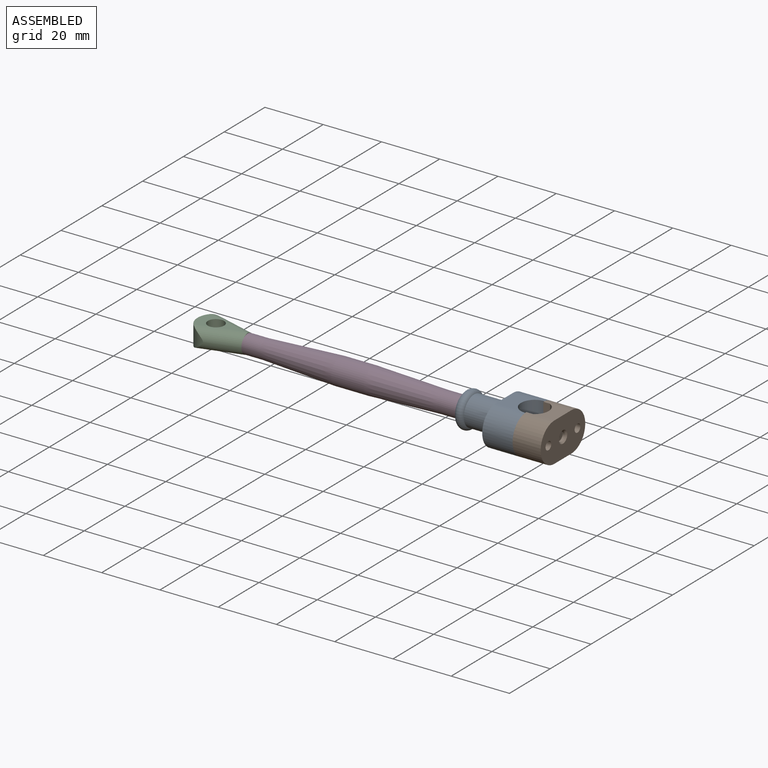
[diagram: assembled view]
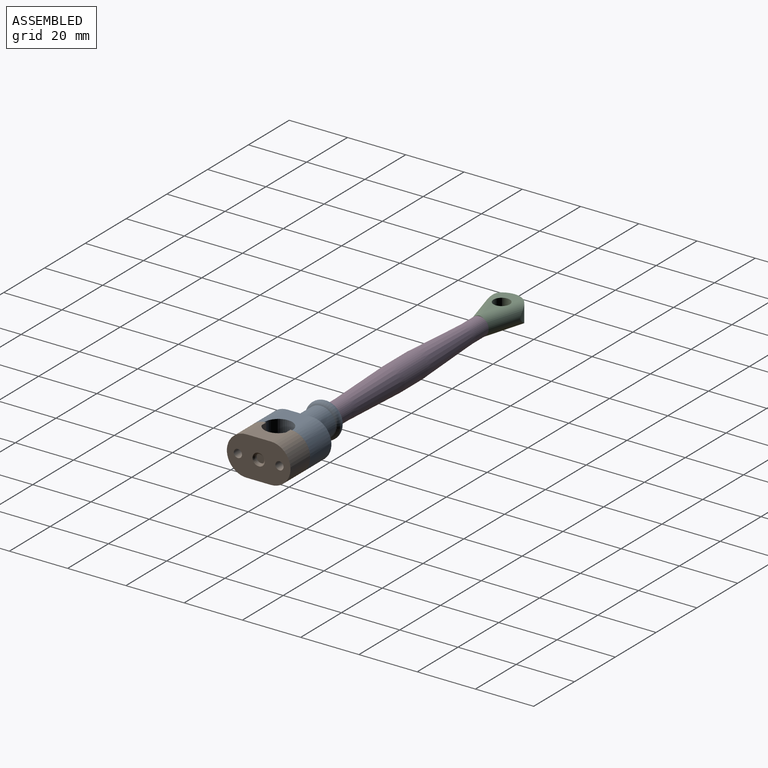
[diagram: assembled view, second angle]
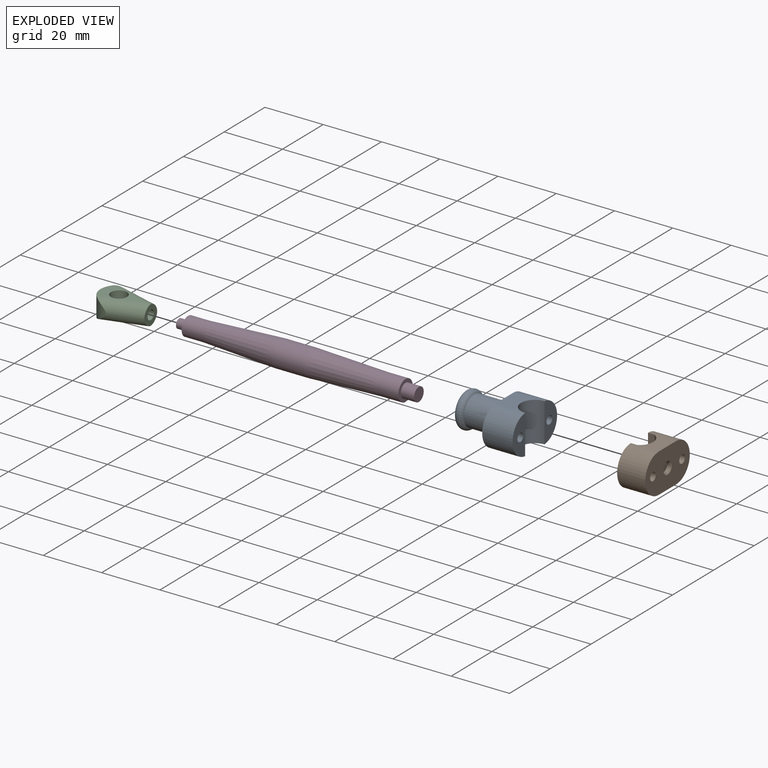
[diagram: exploded view]
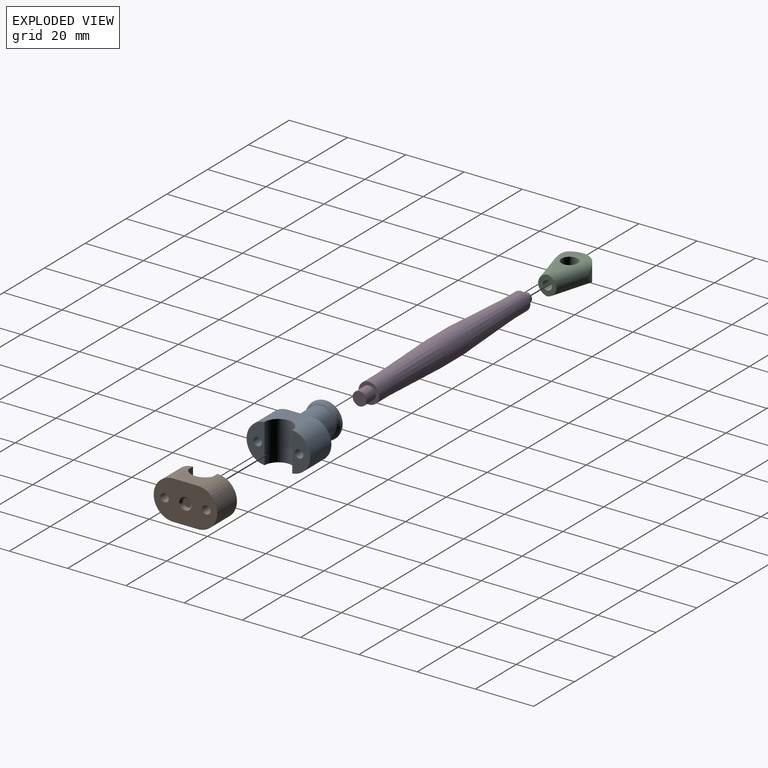
[diagram: exploded view, second angle]
ASSEMBLY  parts=4 mates=3
PART A: 20 faces, bbox 23.9x21.8x14.3 mm
  f0: plane 8.38x8.15mm, normal (0,0,1), area 53.4mm2, adj f4,f9,f18,f19
  f1: plane 8.38x8.15mm, normal (0,0,-1), area 53.4mm2, adj f4,f9,f18,f19
  f2: plane 13.41x6.16mm, normal (1,0,0), area 57.1mm2, adj f5,f9,f19
  f3: plane 13.41x6.16mm, normal (1,0,0), area 57.1mm2, adj f7,f9,f18
  f4: plane 21.84x13.46mm, normal (-1,0,0), area 118.2mm2, adj f0,f1,f17,f18,f19
  f5: cylinder r=1.42mm len=4.83mm, axis (1,0,0), area 43.1mm2, adj f2,f6
  f6: plane 2.85x2.84mm, normal (1,0,0), area 6.4mm2, adj f5
  f7: cylinder r=1.42mm len=4.83mm, axis (1,0,0), area 43.1mm2, adj f3,f8
  f8: plane 2.85x2.84mm, normal (1,0,0), area 6.4mm2, adj f7
  f9: cylinder r=4.76mm len=13.46mm, axis (0,0,1), area 201.3mm2, adj f0,f1,f2,f3,f18,f19
  f10: cylinder r=5.08mm len=10.16mm, axis (-1,0,0), area 283.8mm2, adj f16,f17
  f11: cylinder r=6.1mm len=12.19mm, axis (-1,0,0), area 3.3mm2, adj f15,f16
  f12: plane 4.75x4.75mm, normal (-1,0,0), area 17.7mm2, adj f13
  f13: cylinder r=2.37mm len=4.83mm, axis (-1,0,0), area 72mm2, adj f12,f14
  f14: plane 9.14x9.14mm, normal (-1,0,0), area 48mm2, adj f13,f15
  f15: torus R=4.57mm, axis (1,0,0), area 83.4mm2, adj f11,f14
  f16: torus R=4.57mm, axis (1,0,0), area 67.6mm2, adj f10,f11
  f17: torus R=6.6mm, axis (1,0,0), area 84.7mm2, adj f4,f10
  f18: cylinder r=6.73mm len=13.46mm, axis (-1,0,0), area 218.5mm2, adj f0,f1,f3,f4,f9
  f19: cylinder r=6.73mm len=13.46mm, axis (1,0,0), area 218.5mm2, adj f0,f1,f2,f4,f9
PART B: 15 faces, bbox 9.7x21.8x13.5 mm
  f0: plane 13.46x6.73mm, normal (-1,0,0), area 64.9mm2, adj f6,f11,f13
  f1: plane 13.46x6.73mm, normal (-1,0,0), area 64.9mm2, adj f5,f10,f14
  f2: plane 21.84x13.46mm, normal (1,0,0), area 228.9mm2, adj f3,f4,f5,f6,f9,f10,f11
  f3: plane 8.38x7.39mm, normal (0,0,1), area 47mm2, adj f2,f10,f11,f12
  f4: plane 8.38x7.39mm, normal (0,0,-1), area 47mm2, adj f2,f10,f11,f12
  f5: cylinder r=1.41mm len=9.65mm, axis (1,0,0), area 85.5mm2, adj f1,f2
  f6: cylinder r=1.41mm len=9.65mm, axis (1,0,0), area 85.5mm2, adj f0,f2
  f7: cylinder r=1.59mm len=3.18mm, axis (1,0,0), area 7.6mm2, adj f8,f9
  f8: plane 3.18x3.18mm, normal (1,0,0), area 7.9mm2, adj f7
  f9: cone r=1.59mm half-angle=45deg, axis (1,0,0), area 8.3mm2, adj f2,f7
  f10: cylinder r=6.73mm len=13.46mm, axis (-1,0,0), area 204.1mm2, adj f1,f2,f3,f4,f14
  f11: cylinder r=6.73mm len=13.46mm, axis (1,0,0), area 204.1mm2, adj f0,f2,f3,f4,f13
  f12: cylinder r=4.76mm len=13.46mm, axis (0,0,1), area 138mm2, adj f3,f4,f13,f14
  f13: plane 13.46x2.26mm, normal (0,-1,0), area 30.5mm2, adj f0,f11,f12
  f14: plane 13.46x2.26mm, normal (0,1,0), area 30.5mm2, adj f1,f10,f12
PART C: 16 faces, bbox 18.5x15.3x7.2 mm
  f0: plane 8.14x5.97mm, normal (0,0,1), area 28.9mm2, adj f5,f6,f12,f13
  f1: plane 8.14x5.97mm, normal (0,0,-1), area 28.9mm2, adj f5,f6,f14,f15
  f2: plane 7.14x6.67mm, normal (1,0,0), area 24.1mm2, adj f10,f12,f13,f14,f15
  f3: plane 7.25x4.24mm, normal (0,0,1), area 12.5mm2, adj f6,f12,f13
  f4: plane 7.25x4.24mm, normal (0,0,-1), area 12.5mm2, adj f6,f14,f15
  f5: cylinder r=6.35mm len=12.7mm, axis (0,0,-1), area 94.1mm2, adj f0,f1,f9,f12,f13,f14,f15
  f6: cylinder r=2.78mm len=6.86mm, axis (0,0,-1), area 119.8mm2, adj f0,f1,f3,f4,f12,f13,f14,f15
  f7: cylinder r=0.78mm len=1.56mm, axis (-1,0,0), area 5.8mm2, adj f8,f9
  f8: plane 1.56x1.56mm, normal (-1,0,0), area 1.9mm2, adj f7
  f9: bspline ~2.47x2.32mm, area 3.5mm2, adj f5,f7
  f10: cylinder r=1.59mm len=3.56mm, axis (1,0,0), area 35.5mm2, adj f2,f11
  f11: plane 3.18x3.18mm, normal (1,0,0), area 7.9mm2, adj f10
  f12: cylinder r=3.56mm len=16.65mm, axis (-0.96,0.28,0), area 75mm2, adj f0,f2,f3,f5,f6,f13,f14
  f13: cylinder r=3.56mm len=16.65mm, axis (0.96,0.28,0), area 75mm2, adj f0,f2,f3,f5,f6,f12,f15
  f14: cylinder r=3.56mm len=16.65mm, axis (0.96,-0.28,0), area 75mm2, adj f1,f2,f4,f5,f6,f12,f15
  f15: cylinder r=3.56mm len=16.65mm, axis (-0.96,-0.28,0), area 75mm2, adj f1,f2,f4,f5,f6,f13,f14
PART D: 11 faces, bbox 82.3x8.9x8.9 mm
  f0: cylinder r=4.45mm len=11.18mm, axis (-1,0,0), area 312.1mm2, adj f1,f6
  f1: cone r=4.45mm half-angle=2.1deg, axis (-1,0,0), area 619.6mm2, adj f0,f2
  f2: cylinder r=3.55mm len=7.11mm, axis (-1,0,0), area 158.8mm2, adj f1,f3
  f3: plane 7.11x7.11mm, normal (1,0,0), area 22.2mm2, adj f2,f4
  f4: cylinder r=2.36mm len=4.72mm, axis (-1,0,0), area 67.9mm2, adj f3,f5
  f5: plane 4.72x4.72mm, normal (1,0,0), area 17.5mm2, adj f4
  f6: cone r=4.45mm half-angle=2.9deg, axis (1,0,0), area 608.9mm2, adj f0,f7
  f7: cylinder r=3.18mm len=6.35mm, axis (1,0,0), area 126.7mm2, adj f6,f8
  f8: plane 6.35x6.35mm, normal (-1,0,0), area 23.9mm2, adj f7,f9
  f9: cylinder r=1.57mm len=3.15mm, axis (1,0,0), area 30.2mm2, adj f8,f10
  f10: plane 3.15x3.15mm, normal (-1,0,0), area 7.8mm2, adj f9
PLACE A t=(-82.66,75.86,-12)mm
PLACE B t=(-118.83,75.73,-12)mm
PLACE C t=(67.36,78.07,-8.7)mm
PLACE D t=(8.68,33.17,-5.27)mm
MATE fastened C.f10 <-> D.f0  axis (1,0,0) through (-23.07,33.17,-5.27)mm
MATE fastened A.f10 <-> D.f0  axis (-1,0,0) through (51.6,33.17,-5.27)mm
MATE fastened A.f7 <-> B.f6  axis (1,0,0) through (75.48,40.31,-5.27)mm
